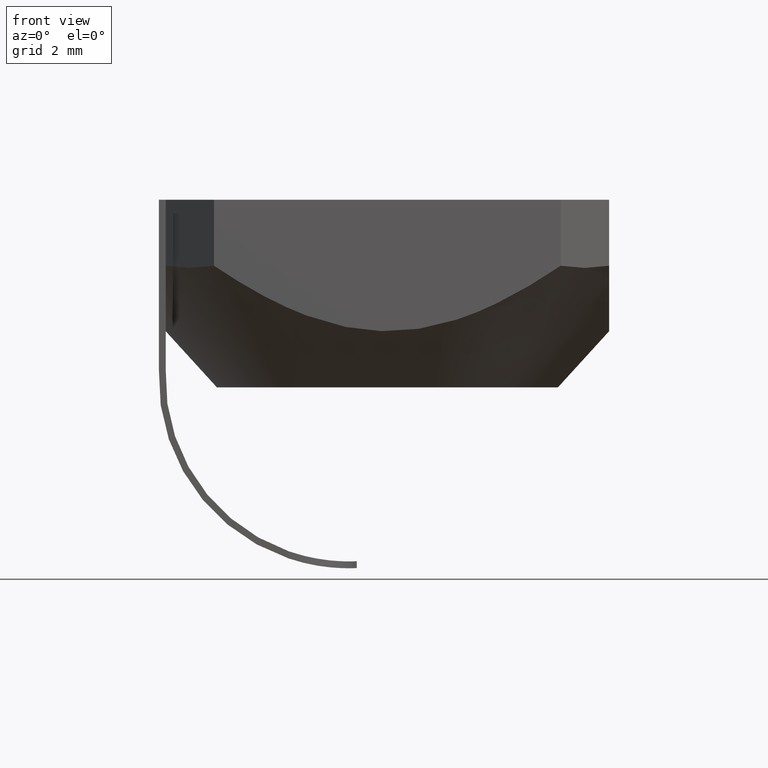
[diagram: clean part render]
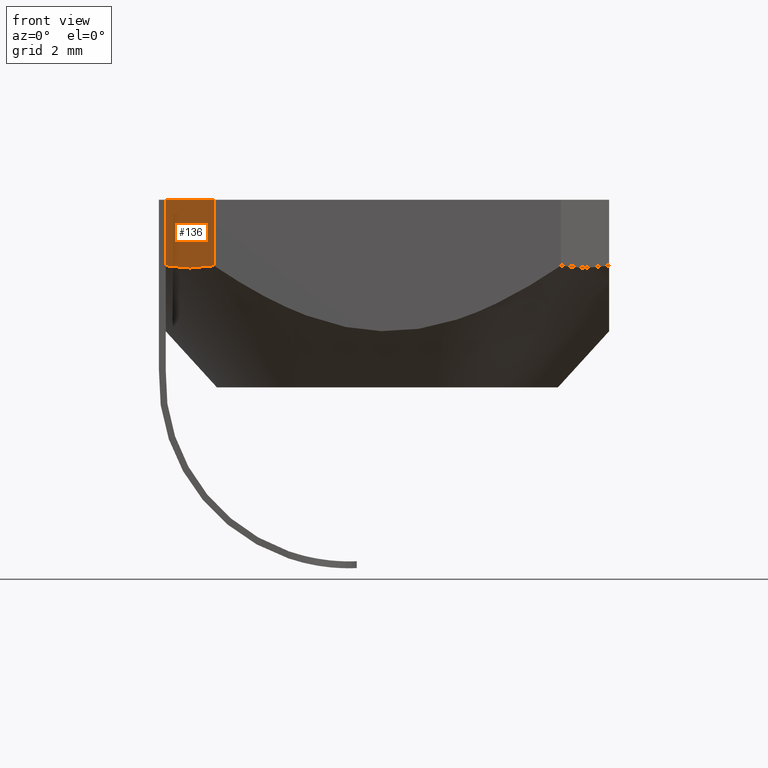
[diagram: same view with one face highlighted and labeled with its STEP entity id]
A machine part, front view. The second image highlights one B-rep face of the part: STEP entity #136.
In plain terms, the highlighted planar face has unit normal (-0.7071, -0.7071, 0).
Its self-contained STEP definition (entity closure, byte-faithful):
#10 = CARTESIAN_POINT ( 'NONE',  ( -5.085786437677105809, -6.500000000012473578, -1.933334202242374511 ) ) ;
#25 = EDGE_CURVE ( 'NONE', #303, #244, #812, .T. ) ;
#75 = CARTESIAN_POINT ( 'NONE',  ( -5.085786437677105809, -6.500000000012473578, -1.933334202242374511 ) ) ;
#102 = VECTOR ( 'NONE', #248, 1000.000000000000000 ) ;
#107 = EDGE_CURVE ( 'NONE', #674, #301, #873, .T. ) ;
#136 = ADVANCED_FACE ( 'NONE', ( #792 ), #405, .T. ) ;
#145 = DIRECTION ( 'NONE',  ( 0.0000000000000000000, -0.0000000000000000000, -1.000000000000000000 ) ) ;
#150 = CARTESIAN_POINT ( 'NONE',  ( -6.500000000000000888, -5.085786437626906853, 0.0000000000000000000 ) ) ;
#205 = EDGE_CURVE ( 'NONE', #303, #674, #268, .T. ) ;
#244 = VERTEX_POINT ( 'NONE', #494 ) ;
#248 = DIRECTION ( 'NONE',  ( 0.7071067811865473507, -0.7071067811865477948, 0.0000000000000000000 ) ) ;
#257 = ORIENTED_EDGE ( 'NONE', *, *, #25, .F. ) ;
#265 = CARTESIAN_POINT ( 'NONE',  ( -6.499999993186322378, -5.085786460416152899, -1.933334192774046389 ) ) ;
#268 = LINE ( 'NONE', #351, #521 ) ;
#274 = CARTESIAN_POINT ( 'NONE',  ( -5.557190953238038134, -6.028595484388869608, -2.021894485532125696 ) ) ;
#301 = VERTEX_POINT ( 'NONE', #10 ) ;
#303 = VERTEX_POINT ( 'NONE', #357 ) ;
#336 = ORIENTED_EDGE ( 'NONE', *, *, #107, .T. ) ;
#351 = CARTESIAN_POINT ( 'NONE',  ( -6.500000000000000888, -5.085786437626906853, 0.0000000000000000000 ) ) ;
#353 = VECTOR ( 'NONE', #145, 1000.000000000000000 ) ;
#357 = CARTESIAN_POINT ( 'NONE',  ( -6.500000000000001776, -5.085786437626905965, 0.0000000000000000000 ) ) ;
#405 = PLANE ( 'NONE',  #573 ) ;
#475 = CARTESIAN_POINT ( 'NONE',  ( -6.499999993186322378, -5.085786460416152899, -1.933334192774046389 ) ) ;
#494 = CARTESIAN_POINT ( 'NONE',  ( -5.085786437626905077, -6.500000000000002665, 0.0000000000000000000 ) ) ;
#521 = VECTOR ( 'NONE', #823, 1000.000000000000000 ) ;
#545 = EDGE_LOOP ( 'NONE', ( #257, #586, #336, #816 ) ) ;
#573 = AXIS2_PLACEMENT_3D ( 'NONE', #150, #688, #748 ) ;
#586 = ORIENTED_EDGE ( 'NONE', *, *, #205, .T. ) ;
#600 = CARTESIAN_POINT ( 'NONE',  ( -5.085786437626905965, -6.500000000000002665, 0.0000000000000000000 ) ) ;
#619 = CARTESIAN_POINT ( 'NONE',  ( -6.028595478651393336, -5.557190974848928100, -2.021894490788222587 ) ) ;
#658 = CARTESIAN_POINT ( 'NONE',  ( -6.500000000000000888, -5.085786437626906853, 0.0000000000000000000 ) ) ;
#674 = VERTEX_POINT ( 'NONE', #265 ) ;
#688 = DIRECTION ( 'NONE',  ( -0.7071067811865475727, -0.7071067811865475727, 0.0000000000000000000 ) ) ;
#733 = EDGE_CURVE ( 'NONE', #244, #301, #880, .T. ) ;
#748 = DIRECTION ( 'NONE',  ( 0.7071067811865474617, -0.7071067811865474617, 0.0000000000000000000 ) ) ;
#792 = FACE_OUTER_BOUND ( 'NONE', #545, .T. ) ;
#812 = LINE ( 'NONE', #658, #102 ) ;
#816 = ORIENTED_EDGE ( 'NONE', *, *, #733, .F. ) ;
#823 = DIRECTION ( 'NONE',  ( -0.0000000000000000000, -0.0000000000000000000, -1.000000000000000000 ) ) ;
#873 = B_SPLINE_CURVE_WITH_KNOTS ( 'NONE', 3,
 ( #475, #619, #274, #75 ),
 .UNSPECIFIED., .F., .F.,
 ( 4, 4 ),
 ( 2.240106109367142299E-12, 0.001999999981280999733 ),
 .UNSPECIFIED. ) ;
#880 = LINE ( 'NONE', #600, #353 ) ;